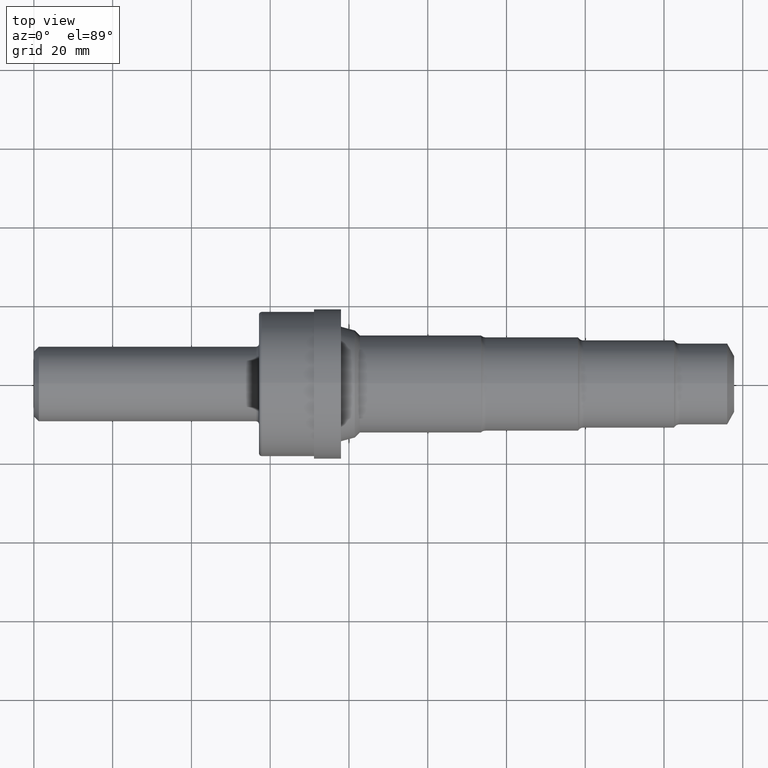
[diagram: clean part render]
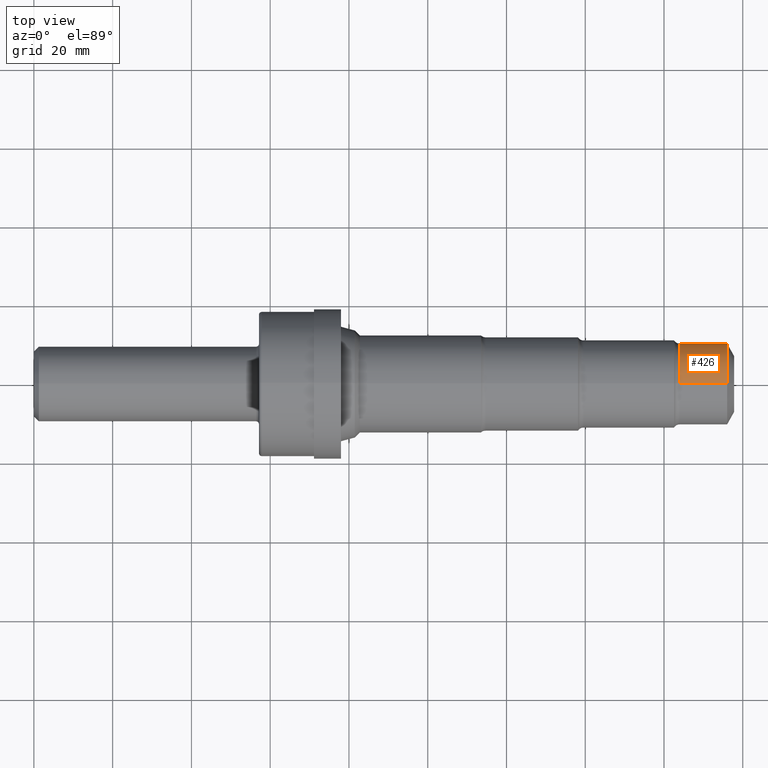
[diagram: same view with one face highlighted and labeled with its STEP entity id]
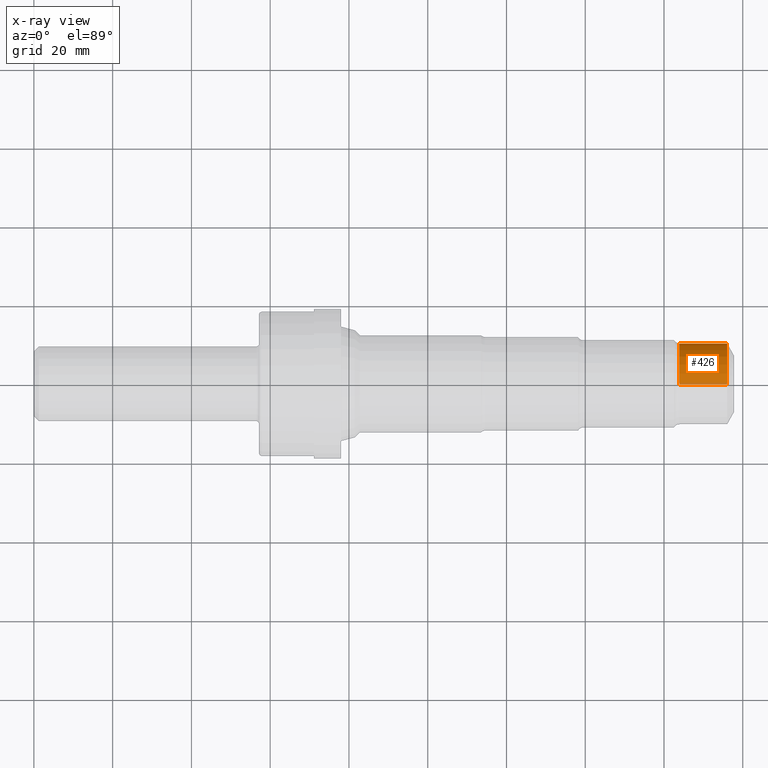
[diagram: x-ray of the same camera — body ghosted, the highlighted face saturated]
A machine part, top view. The second image highlights one B-rep face of the part: STEP entity #426.
The next image is the same camera in x-ray: the body ghosted, the highlighted face saturated — about 4% of this face is hidden behind the body in this view.
In plain terms, the highlighted cylindrical surface (partial cylindrical patch) has radius 10.3226 mm, axis along (-1, -0, -0).
Its self-contained STEP definition (entity closure, byte-faithful):
#32 = CARTESIAN_POINT ( 'NONE',  ( 0.0000000000000000000, 4.976964591734842644E-17, -0.4063999999999999280 ) ) ;
#35 = DIRECTION ( 'NONE',  ( -1.000000000000000000, -0.0000000000000000000, -0.0000000000000000000 ) ) ;
#52 = AXIS2_PLACEMENT_3D ( 'NONE', #618, #396, #402 ) ;
#55 = DIRECTION ( 'NONE',  ( -1.000000000000000000, -0.0000000000000000000, -0.0000000000000000000 ) ) ;
#68 = ORIENTED_EDGE ( 'NONE', *, *, #79, .F. ) ;
#71 = DIRECTION ( 'NONE',  ( 0.0000000000000000000, 0.0000000000000000000, 1.000000000000000000 ) ) ;
#79 = EDGE_CURVE ( 'NONE', #646, #703, #1015, .T. ) ;
#154 = DIRECTION ( 'NONE',  ( -1.000000000000000000, -0.0000000000000000000, -0.0000000000000000000 ) ) ;
#203 = LINE ( 'NONE', #1008, #1049 ) ;
#211 = EDGE_CURVE ( 'NONE', #830, #703, #303, .T. ) ;
#270 = VERTEX_POINT ( 'NONE', #313 ) ;
#271 = EDGE_CURVE ( 'NONE', #270, #830, #872, .T. ) ;
#303 = LINE ( 'NONE', #32, #706 ) ;
#313 = CARTESIAN_POINT ( 'NONE',  ( 6.929999999999999716, 0.0000000000000000000, 0.4063999999999999835 ) ) ;
#374 = FACE_OUTER_BOUND ( 'NONE', #505, .T. ) ;
#396 = DIRECTION ( 'NONE',  ( -1.000000000000000000, -0.0000000000000000000, -0.0000000000000000000 ) ) ;
#402 = DIRECTION ( 'NONE',  ( 0.0000000000000000000, 0.0000000000000000000, 1.000000000000000000 ) ) ;
#405 = EDGE_CURVE ( 'NONE', #270, #646, #203, .T. ) ;
#426 = ADVANCED_FACE ( 'NONE', ( #374 ), #580, .T. ) ;
#450 = DIRECTION ( 'NONE',  ( -1.000000000000000000, -0.0000000000000000000, -0.0000000000000000000 ) ) ;
#505 = EDGE_LOOP ( 'NONE', ( #673, #573, #68, #726 ) ) ;
#520 = AXIS2_PLACEMENT_3D ( 'NONE', #731, #154, #71 ) ;
#573 = ORIENTED_EDGE ( 'NONE', *, *, #211, .T. ) ;
#580 = CYLINDRICAL_SURFACE ( 'NONE', #689, 0.4063999999999999280 ) ;
#612 = CARTESIAN_POINT ( 'NONE',  ( 6.453979162646339418, 0.0000000000000000000, 0.4063999999999999280 ) ) ;
#618 = CARTESIAN_POINT ( 'NONE',  ( 6.929999999999999716, 0.0000000000000000000, 0.0000000000000000000 ) ) ;
#623 = CARTESIAN_POINT ( 'NONE',  ( 0.0000000000000000000, 0.0000000000000000000, 0.0000000000000000000 ) ) ;
#646 = VERTEX_POINT ( 'NONE', #612 ) ;
#673 = ORIENTED_EDGE ( 'NONE', *, *, #271, .T. ) ;
#689 = AXIS2_PLACEMENT_3D ( 'NONE', #623, #35, #702 ) ;
#702 = DIRECTION ( 'NONE',  ( 0.0000000000000000000, 0.0000000000000000000, 1.000000000000000000 ) ) ;
#703 = VERTEX_POINT ( 'NONE', #861 ) ;
#706 = VECTOR ( 'NONE', #55, 39.37007874015748143 ) ;
#707 = CARTESIAN_POINT ( 'NONE',  ( 6.929999999999999716, 4.976964591734843260E-17, -0.4063999999999999835 ) ) ;
#726 = ORIENTED_EDGE ( 'NONE', *, *, #405, .F. ) ;
#731 = CARTESIAN_POINT ( 'NONE',  ( 6.453979162646339418, 0.0000000000000000000, 0.0000000000000000000 ) ) ;
#830 = VERTEX_POINT ( 'NONE', #707 ) ;
#861 = CARTESIAN_POINT ( 'NONE',  ( 6.453979162646339418, 5.169846462600551888E-17, -0.4063999999999999280 ) ) ;
#872 = CIRCLE ( 'NONE', #52, 0.4063999999999999835 ) ;
#1008 = CARTESIAN_POINT ( 'NONE',  ( 0.0000000000000000000, 0.0000000000000000000, 0.4063999999999999280 ) ) ;
#1015 = CIRCLE ( 'NONE', #520, 0.4063999999999999280 ) ;
#1049 = VECTOR ( 'NONE', #450, 39.37007874015748143 ) ;